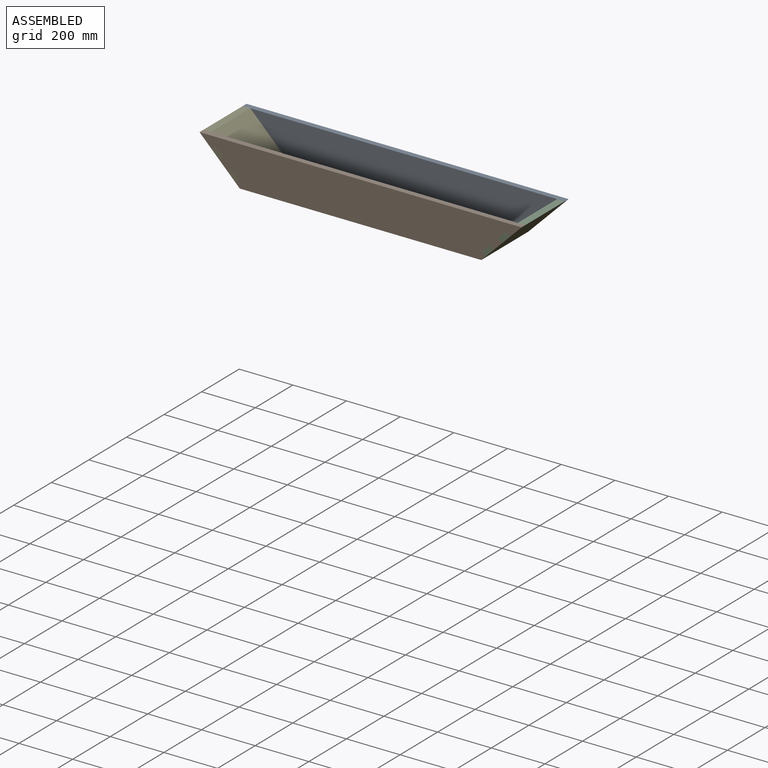
[diagram: assembled view]
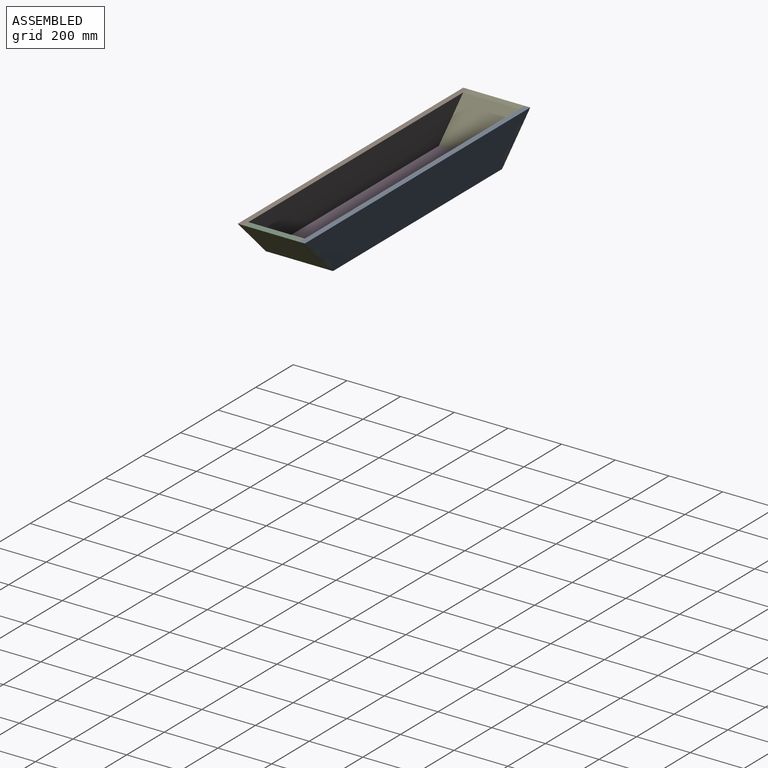
[diagram: assembled view, second angle]
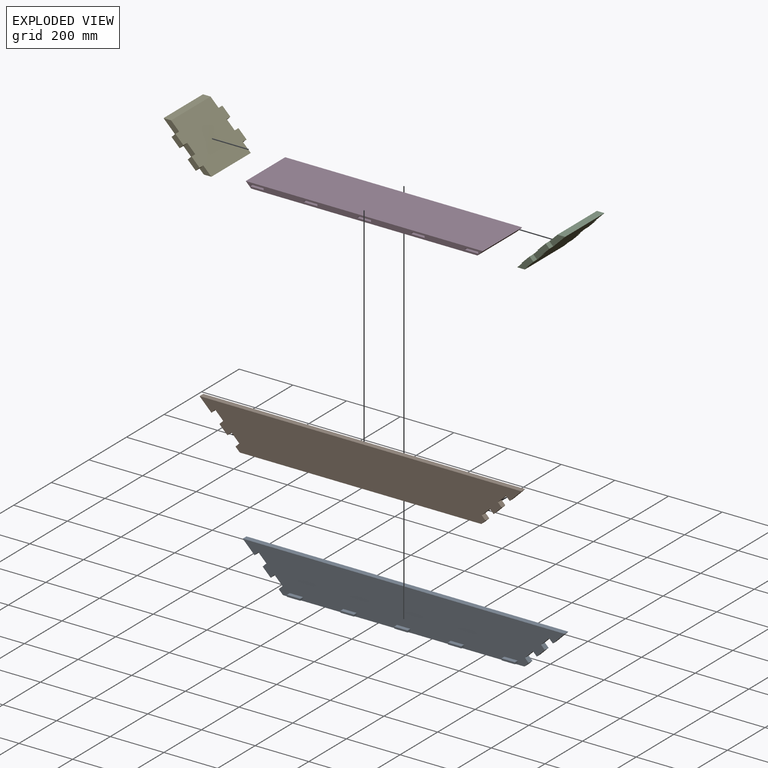
[diagram: exploded view]
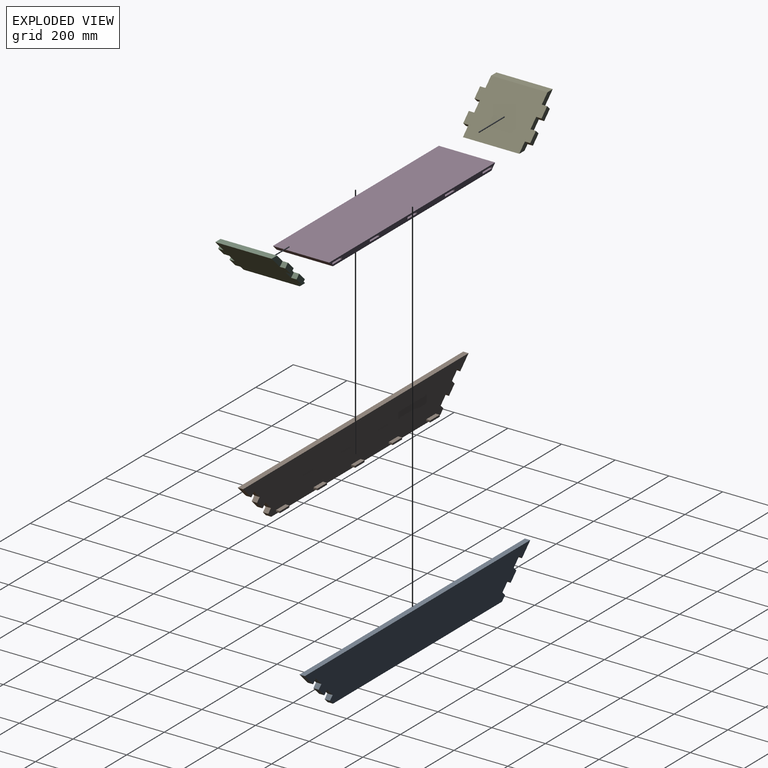
[diagram: exploded view, second angle]
ASSEMBLY  parts=5 mates=4
PART A: 47 faces, bbox 1200x35x150 mm
  f0: plane 1200x150mm, normal (0,-1,0), area 152439.2mm2, adj f1,f2,f3,f4,f6,f7,f8,f9
  f1: plane 30x30mm, normal (-0.71,0,-0.71), area 848.5mm2, adj f0,f5,f12,f19
  f2: plane 20x15.86mm, normal (-0.71,0,-0.71), area 448.5mm2, adj f0,f5,f8,f10
  f3: plane 20x15.86mm, normal (0.71,0,-0.71), area 448.5mm2, adj f0,f5,f8,f18
  f4: plane 30x30mm, normal (0.71,0,-0.71), area 848.5mm2, adj f0,f5,f13,f16
  f5: plane 1200x150mm, normal (0,1,0), area 154105.9mm2, adj f1,f2,f3,f4,f6,f7,f8,f9
  f6: plane 1200x20mm, normal (0,0,1), area 24000mm2, adj f0,f5,f7,f9
  f7: plane 44.14x44.14mm, normal (-0.71,0,-0.71), area 1248.5mm2, adj f0,f5,f6,f21
  f8: plane 900x20mm, normal (0,0,-1), area 18000mm2, adj f0,f2,f3,f5
  f9: plane 44.14x44.14mm, normal (0.71,0,-0.71), area 1248.5mm2, adj f0,f5,f6,f14
  f10: plane 20x14.14mm, normal (-0.71,0,0.71), area 400mm2, adj f0,f2,f5,f11
  f11: plane 30x30mm, normal (-0.71,0,-0.71), area 848.5mm2, adj f0,f5,f10,f12
  f12: plane 20x14.14mm, normal (0.71,0,-0.71), area 400mm2, adj f0,f1,f5,f11
  f13: plane 20x14.14mm, normal (0.71,0,0.71), area 400mm2, adj f0,f4,f5,f15
  f14: plane 20x14.14mm, normal (-0.71,0,-0.71), area 400mm2, adj f0,f5,f9,f15
  f15: plane 30x30mm, normal (0.71,0,-0.71), area 848.5mm2, adj f0,f5,f13,f14
  f16: plane 20x14.14mm, normal (-0.71,0,-0.71), area 400mm2, adj f0,f4,f5,f17
  f17: plane 30x30mm, normal (0.71,0,-0.71), area 848.5mm2, adj f0,f5,f16,f18
  f18: plane 20x14.14mm, normal (0.71,0,0.71), area 400mm2, adj f0,f3,f5,f17
  f19: plane 20x14.14mm, normal (-0.71,0,0.71), area 400mm2, adj f0,f1,f5,f20
  f20: plane 30x30mm, normal (-0.71,0,-0.71), area 848.5mm2, adj f0,f5,f19,f21
  f21: plane 20x14.14mm, normal (0.71,0,-0.71), area 400mm2, adj f0,f5,f7,f20
  f22: plane 50x15mm, normal (0,0,-1), area 750mm2, adj f0,f23,f25,f26
  f23: plane 15x6.67mm, normal (1,0,0), area 100mm2, adj f0,f22,f24,f26
  f24: plane 50x15mm, normal (0,0,1), area 750mm2, adj f0,f23,f25,f26
  f25: plane 15x6.67mm, normal (-1,0,0), area 100mm2, adj f0,f22,f24,f26
  f26: plane 50x6.67mm, normal (0,-1,0), area 333.3mm2, adj f22,f23,f24,f25
  f27: plane 50x15mm, normal (0,0,1), area 750mm2, adj f0,f28,f30,f31
  f28: plane 15x6.67mm, normal (-1,0,0), area 100mm2, adj f0,f27,f29,f31
  f29: plane 50x15mm, normal (0,0,-1), area 750mm2, adj f0,f28,f30,f31
  f30: plane 15x6.67mm, normal (1,0,0), area 100mm2, adj f0,f27,f29,f31
  f31: plane 50x6.67mm, normal (0,-1,0), area 333.3mm2, adj f27,f28,f29,f30
  f32: plane 50x15mm, normal (0,0,1), area 750mm2, adj f0,f33,f35,f36
  f33: plane 15x6.67mm, normal (-1,0,0), area 100mm2, adj f0,f32,f34,f36
  f34: plane 50x15mm, normal (0,0,-1), area 750mm2, adj f0,f33,f35,f36
  f35: plane 15x6.67mm, normal (1,0,0), area 100mm2, adj f0,f32,f34,f36
  f36: plane 50x6.67mm, normal (0,-1,0), area 333.3mm2, adj f32,f33,f34,f35
  f37: plane 50x15mm, normal (0,0,1), area 750mm2, adj f0,f38,f40,f41
  f38: plane 15x6.67mm, normal (-1,0,0), area 100mm2, adj f0,f37,f39,f41
  f39: plane 50x15mm, normal (0,0,-1), area 750mm2, adj f0,f38,f40,f41
  f40: plane 15x6.67mm, normal (1,0,0), area 100mm2, adj f0,f37,f39,f41
  f41: plane 50x6.67mm, normal (0,-1,0), area 333.3mm2, adj f37,f38,f39,f40
  f42: plane 15x6.67mm, normal (1,0,0), area 100mm2, adj f0,f43,f45,f46
  f43: plane 50x15mm, normal (0,0,1), area 750mm2, adj f0,f42,f44,f46
  f44: plane 15x6.67mm, normal (-1,0,0), area 100mm2, adj f0,f43,f45,f46
  f45: plane 50x15mm, normal (0,0,-1), area 750mm2, adj f0,f42,f44,f46
  f46: plane 50x6.67mm, normal (0,-1,0), area 333.3mm2, adj f42,f43,f44,f45
PART B: same geometry as A
PART C: 22 faces, bbox 20x250x232.1 mm
  f0: plane 210x20mm, normal (0.71,0,0.71), area 5939.7mm2, adj f1,f7,f14,f21
  f1: plane 250x212.13mm, normal (1,0,0), area 47941.8mm2, adj f0,f2,f3,f4,f5,f6,f8,f9
  f2: plane 210x20mm, normal (-0.71,0,-0.71), area 5939.7mm2, adj f1,f7,f8,f15
  f3: plane 42.43x20mm, normal (0,1,0), area 848.5mm2, adj f1,f7,f17,f20
  f4: plane 42.43x20mm, normal (0,1,0), area 848.5mm2, adj f1,f7,f16,f18
  f5: plane 42.43x20mm, normal (0,-1,0), area 848.5mm2, adj f1,f7,f9,f10
  f6: plane 42.43x20mm, normal (0,-1,0), area 848.5mm2, adj f1,f7,f11,f13
  f7: plane 250x212.13mm, normal (-1,0,0), area 47941.8mm2, adj f0,f2,f3,f4,f5,f6,f8,f9
  f8: plane 42.43x20mm, normal (0,-1,0), area 648.5mm2, adj f1,f2,f7,f9
  f9: plane 20x20mm, normal (0,0,-1), area 400mm2, adj f1,f5,f7,f8
  f10: plane 20x20mm, normal (0,0,1), area 400mm2, adj f1,f5,f7,f12
  f11: plane 20x20mm, normal (0,0,-1), area 400mm2, adj f1,f6,f7,f12
  f12: plane 42.43x20mm, normal (0,-1,0), area 848.5mm2, adj f1,f7,f10,f11
  f13: plane 20x20mm, normal (0,0,1), area 400mm2, adj f1,f6,f7,f14
  f14: plane 62.43x20mm, normal (0,-1,0), area 1048.5mm2, adj f0,f1,f7,f13
  f15: plane 42.43x20mm, normal (0,1,0), area 648.5mm2, adj f1,f2,f7,f16
  f16: plane 20x20mm, normal (0,0,-1), area 400mm2, adj f1,f4,f7,f15
  f17: plane 20x20mm, normal (0,0,-1), area 400mm2, adj f1,f3,f7,f19
  f18: plane 20x20mm, normal (0,0,1), area 400mm2, adj f1,f4,f7,f19
  f19: plane 42.43x20mm, normal (0,1,0), area 848.5mm2, adj f1,f7,f17,f18
  f20: plane 20x20mm, normal (0,0,1), area 400mm2, adj f1,f3,f7,f21
  f21: plane 62.43x20mm, normal (0,1,0), area 1048.5mm2, adj f0,f1,f7,f20
PART D: 56 faces, bbox 883.4x210x20 mm
  f0: plane 883.43x20mm, normal (0,-1,0), area 15602mm2, adj f1,f3,f4,f5,f6,f7,f9,f10
  f1: plane 843.43x210mm, normal (0,0,-1), area 177120.5mm2, adj f0,f2,f54,f55
  f2: plane 883.43x20mm, normal (0,1,0), area 15602mm2, adj f1,f3,f29,f30,f31,f32,f34,f35
  f3: plane 883.43x210mm, normal (0,0,1), area 185520.5mm2, adj f0,f2,f54,f55
  f4: plane 50x15mm, normal (0,0,1), area 750mm2, adj f0,f5,f7,f8
  f5: plane 15x6.67mm, normal (-1,0,0), area 100mm2, adj f0,f4,f6,f8
  f6: plane 50x15mm, normal (0,0,-1), area 750mm2, adj f0,f5,f7,f8
  f7: plane 15x6.67mm, normal (1,0,0), area 100mm2, adj f0,f4,f6,f8
  f8: plane 50x6.67mm, normal (0,-1,0), area 333.3mm2, adj f4,f5,f6,f7
  f9: plane 50x15mm, normal (0,0,-1), area 750mm2, adj f0,f10,f12,f13
  f10: plane 15x6.67mm, normal (1,0,0), area 100mm2, adj f0,f9,f11,f13
  f11: plane 50x15mm, normal (0,0,1), area 750mm2, adj f0,f10,f12,f13
  f12: plane 15x6.67mm, normal (-1,0,0), area 100mm2, adj f0,f9,f11,f13
  f13: plane 50x6.67mm, normal (0,-1,0), area 333.3mm2, adj f9,f10,f11,f12
  f14: plane 50x15mm, normal (0,0,-1), area 750mm2, adj f0,f15,f17,f18
  f15: plane 15x6.67mm, normal (1,0,0), area 100mm2, adj f0,f14,f16,f18
  f16: plane 50x15mm, normal (0,0,1), area 750mm2, adj f0,f15,f17,f18
  f17: plane 15x6.67mm, normal (-1,0,0), area 100mm2, adj f0,f14,f16,f18
  f18: plane 50x6.67mm, normal (0,-1,0), area 333.3mm2, adj f14,f15,f16,f17
  f19: plane 50x15mm, normal (0,0,-1), area 750mm2, adj f0,f20,f22,f23
  f20: plane 15x6.67mm, normal (1,0,0), area 100mm2, adj f0,f19,f21,f23
  f21: plane 50x15mm, normal (0,0,1), area 750mm2, adj f0,f20,f22,f23
  f22: plane 15x6.67mm, normal (-1,0,0), area 100mm2, adj f0,f19,f21,f23
  f23: plane 50x6.67mm, normal (0,-1,0), area 333.3mm2, adj f19,f20,f21,f22
  f24: plane 15x6.67mm, normal (-1,0,0), area 100mm2, adj f0,f25,f27,f28
  f25: plane 50x15mm, normal (0,0,-1), area 750mm2, adj f0,f24,f26,f28
  f26: plane 15x6.67mm, normal (1,0,0), area 100mm2, adj f0,f25,f27,f28
  f27: plane 50x15mm, normal (0,0,1), area 750mm2, adj f0,f24,f26,f28
  f28: plane 50x6.67mm, normal (0,-1,0), area 333.3mm2, adj f24,f25,f26,f27
  f29: plane 50x15mm, normal (0,0,1), area 750mm2, adj f2,f30,f32,f33
  f30: plane 15x6.67mm, normal (1,0,0), area 100mm2, adj f2,f29,f31,f33
  f31: plane 50x15mm, normal (0,0,-1), area 750mm2, adj f2,f30,f32,f33
  f32: plane 15x6.67mm, normal (-1,0,0), area 100mm2, adj f2,f29,f31,f33
  f33: plane 50x6.67mm, normal (0,1,0), area 333.3mm2, adj f29,f30,f31,f32
  f34: plane 50x15mm, normal (0,0,-1), area 750mm2, adj f2,f35,f37,f38
  f35: plane 15x6.67mm, normal (-1,0,0), area 100mm2, adj f2,f34,f36,f38
  f36: plane 50x15mm, normal (0,0,1), area 750mm2, adj f2,f35,f37,f38
  f37: plane 15x6.67mm, normal (1,0,0), area 100mm2, adj f2,f34,f36,f38
  f38: plane 50x6.67mm, normal (0,1,0), area 333.3mm2, adj f34,f35,f36,f37
  f39: plane 50x15mm, normal (0,0,-1), area 750mm2, adj f2,f40,f42,f43
  f40: plane 15x6.67mm, normal (-1,0,0), area 100mm2, adj f2,f39,f41,f43
  f41: plane 50x15mm, normal (0,0,1), area 750mm2, adj f2,f40,f42,f43
  f42: plane 15x6.67mm, normal (1,0,0), area 100mm2, adj f2,f39,f41,f43
  f43: plane 50x6.67mm, normal (0,1,0), area 333.3mm2, adj f39,f40,f41,f42
  f44: plane 50x15mm, normal (0,0,-1), area 750mm2, adj f2,f45,f47,f48
  f45: plane 15x6.67mm, normal (-1,0,0), area 100mm2, adj f2,f44,f46,f48
  f46: plane 50x15mm, normal (0,0,1), area 750mm2, adj f2,f45,f47,f48
  f47: plane 15x6.67mm, normal (1,0,0), area 100mm2, adj f2,f44,f46,f48
  f48: plane 50x6.67mm, normal (0,1,0), area 333.3mm2, adj f44,f45,f46,f47
  f49: plane 15x6.67mm, normal (-1,0,0), area 100mm2, adj f2,f50,f52,f53
  f50: plane 50x15mm, normal (0,0,1), area 750mm2, adj f2,f49,f51,f53
  f51: plane 15x6.67mm, normal (1,0,0), area 100mm2, adj f2,f50,f52,f53
  f52: plane 50x15mm, normal (0,0,-1), area 750mm2, adj f2,f49,f51,f53
  f53: plane 50x6.67mm, normal (0,1,0), area 333.3mm2, adj f49,f50,f51,f52
  f54: plane 210x20mm, normal (0.71,0,-0.71), area 5939.7mm2, adj f0,f1,f2,f3
  f55: plane 210x20mm, normal (-0.71,0,-0.71), area 5939.7mm2, adj f0,f1,f2,f3
PART E: same geometry as C
PLACE A t=(518.75,716.97,40.77)mm
PLACE B rot(axis=(0,0,-1),180deg) t=(518.75,486.97,40.77)mm
PLACE C rot(axis=(0.38,0,0.92),180deg) t=(1029.61,601.97,40.77)mm
PLACE D rot(axis=(0.02,-0.61,0.79),0deg) t=(518.75,601.97,-24.23)mm
PLACE E rot(axis=(0,-1,0),45deg) t=(7.9,601.97,40.77)mm
MATE fastened E.f0 <-> B.f6  axis (0,0,1) through (-81.25,496.97,115.77)mm
MATE fastened A.f6 <-> E.f0  axis (0,0,1) through (-81.25,706.97,115.77)mm
MATE fastened E.f1 <-> D.f55  axis (0.71,0,0.71) through (97.04,706.97,-34.23)mm
MATE fastened A.f6 <-> C.f0  axis (0,0,1) through (1118.75,706.97,115.77)mm
